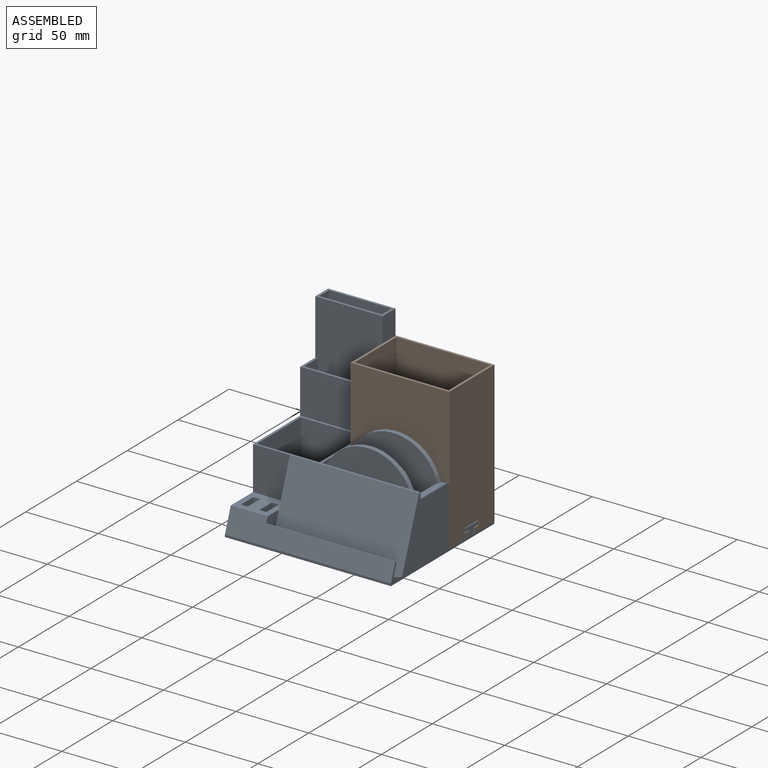
[diagram: assembled view]
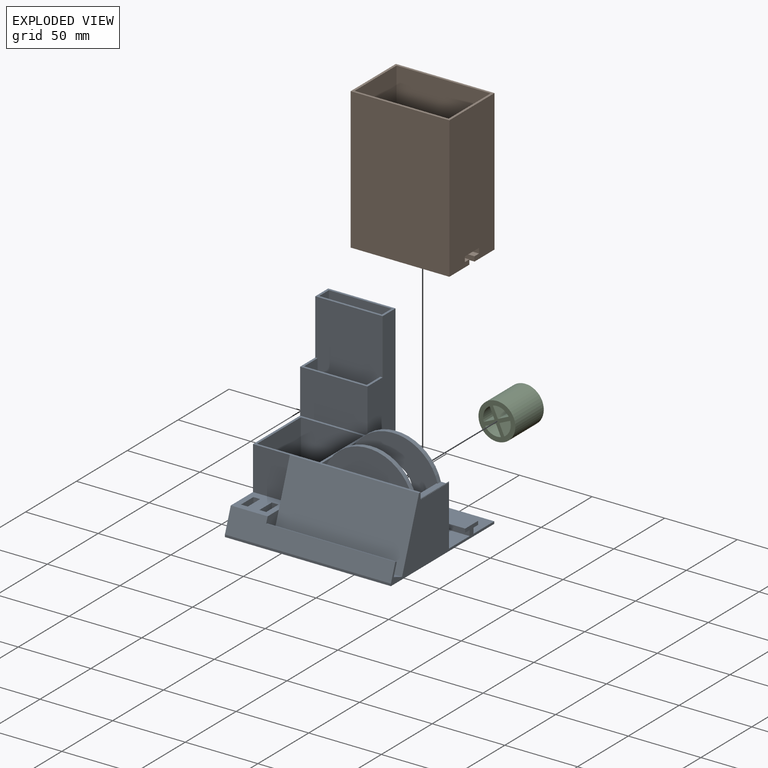
[diagram: exploded view]
GUIDED TOUR — MATED ASSEMBLY (Onshape document 43e602988aa5eb020c85fcba, AutoMate assembly 43e602988aa5eb020c85fcba_9b0caa59e8d1a8565d4183b4_3f70e2825a482d77e916e077_default)

This assembly has 3 components, labeled P0..P2 below (a component is one placed occurrence of a part; the same part can appear more than once), held together by 2 mates. A mate is a constraint between two components; its type names the relative motion it leaves free:
  CYLINDRICAL — leaves both rotation about and translation along the listed axis free,
  PLANAR — leaves sliding in the plane through the listed point (normal = the listed direction) and rotation about that normal free.
Axis/direction vectors are unit vectors and 'through' points are millimeter coordinates, both in the assembly's world frame.

MATES
  1. PLANAR "Planar 1": P0 <-> P1, direction (0.000, 0.000, 1.000) through (23.18, 16.51, 1.59) mm
  2. CYLINDRICAL "Cylindrical 1": P2 <-> P0, axis (0.000, 1.000, 0.000) through (20.95, -7.68, 33.34) mm

ASSEMBLY ORDER
  1. P0 — the base component [order heuristic]
  2. P1 — core [order heuristic]
  3. P2 [order verified]
Order-tag legend:
  [order verified] — this step's position reverses a verified removal order: the component was checked to insert without passing through the ones already placed.
  [order heuristic] — the first 2 components form the assembly's core: parts whose collision-free extraction could not be verified, listed in mate-graph order.

Of the 3 components, 2 carry the full construction recipe — the FeatureScript program that regenerates the part's solid from scratch; the rest are supplied as boundary geometry only.
Each toured component is shown spotlighted twice — in the assembled view, then in the exploded view, where a leader line traces a displaced component back to its assembled socket (saturated green if recipe-attached, orange if geometry-only; every other component desaturated gray) — followed by its recipe or geometry summary and the mates that hold it.
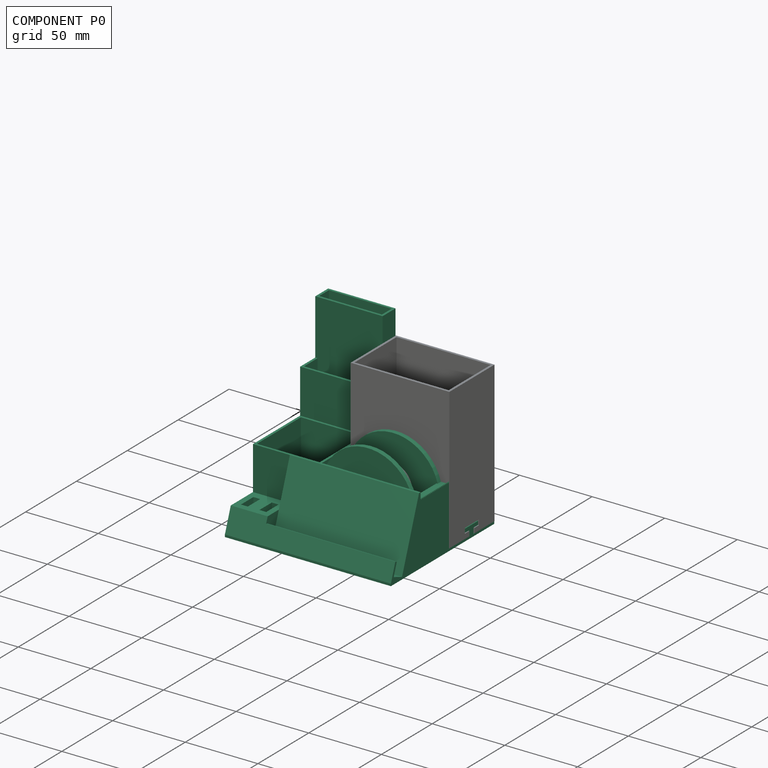
[diagram: component P0 — assembled]
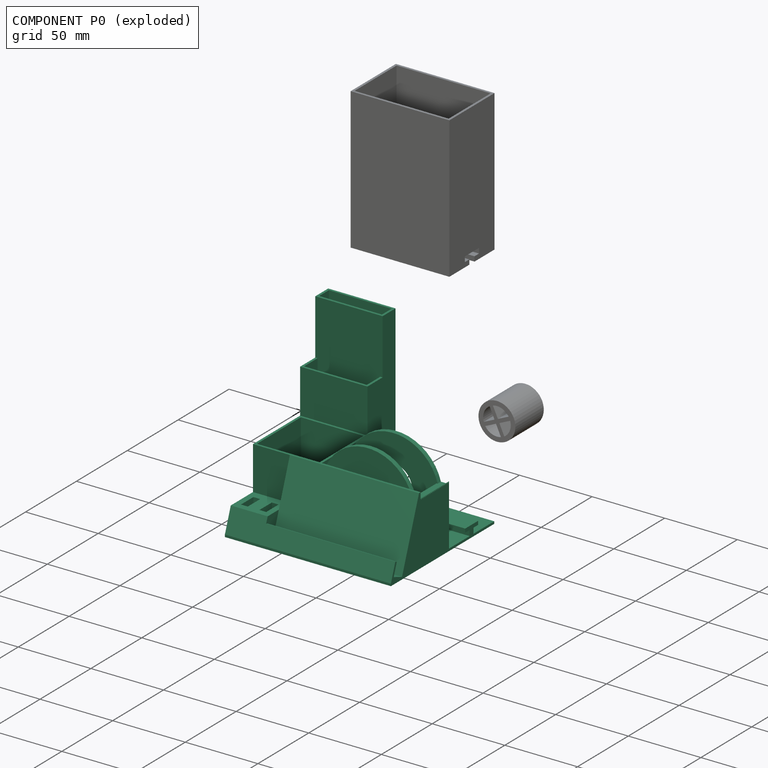
[diagram: component P0 — exploded]
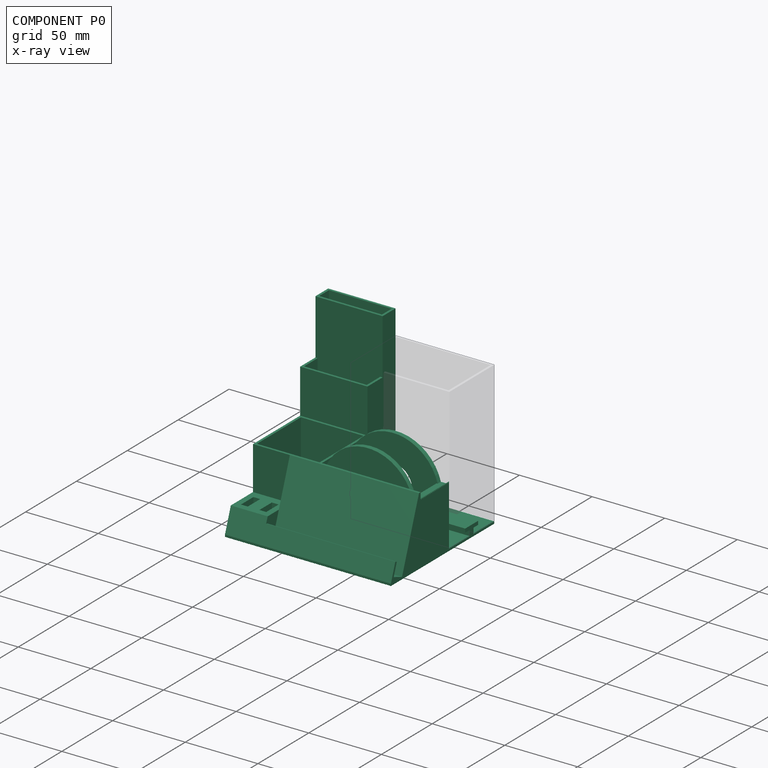
[diagram: component P0 — x-ray view]
COMPONENT P0 — recipe-attached (CADFS 00814327, mesh-verified: the recipe's output STEP matches this component's geometry to below the mesh-comparison resolution (tessellation chordal tolerance ~0.288 mm)).
Held by: PLANAR mate "Planar 1" to P1; CYLINDRICAL mate "Cylindrical 1" to P2.
Construction recipe (FeatureScript — the CAD program that rebuilds this solid; sketch coordinates are in the units given by the * unit suffixes, e.g. mm):

FeatureScript 1540;
import(path : "onshape/std/geometry.fs", version : "1540.0");
import(path : "onshape/std/common.fs", version : "1540.0");
const mm = millimeter;
const VERTEX = EntityType.VERTEX;
const EDGE = EntityType.EDGE;
const FACE = EntityType.FACE;
const BODY = EntityType.BODY;
function v(x, y){return vector(x, y);}
function OD(order){return orderDisambiguation(order);}
function OSD(set){return originalSetDisambiguation(set);}
function TD(topology){return topologyDisambiguation(topology);}
function TDD(query){return trueDependencyDisambiguation(query);}
function sQuery(a, b, c) {return sketchEntityQuery(a, b, c);}

annotation { "Feature Type Name" : "Feature", "Feature Type Description" : "" }
export const myFeature = defineFeature(function(context is Context, id is Id, definition is map)
    precondition{}
    {
        {
            var Q0;
            Q0=qCreatedBy(makeId("Top.planeOp"),FACE);
            var sketch = newSketch(context, id + "F0", { "sketchPlane" : qUnion([Q0])});
            skLineSegment(sketch, "E0.bottom", {"start": v(-57.15, 50.8) * mm, "end": v(57.15, 50.8) * mm});
            skLineSegment(sketch, "E0.top", {"start": v(-57.15, -50.8) * mm, "end": v(57.15, -50.8) * mm});
            skLineSegment(sketch, "E0.left", {"start": v(-57.15, 50.8) * mm, "end": v(-57.15, -50.8) * mm});
            skLineSegment(sketch, "E0.right", {"start": v(57.15, 50.8) * mm, "end": v(57.15, -50.8) * mm});
            skLineSegment(sketch, "E1", {"start": v(-57.15, 50.8) * mm, "end": v(57.15, -50.8) * mm, "construction": true});
            skSolve(sketch);
        }
        {
            var Q0;
            Q0 = qSketchRegion(id + "F0", true);
            extrude(context, id + "F1", {"entities" : qUnion([Q0]), "depth" : 1.59 * mm, "offsetDistance" : 25.4 * mm});
        }
        {
            var Q0;
            Q0=makeQuery(id+"F1.opExtrude","CAP_FACE",FACE,{"disambiguationData":[OSD([sQuery(id+"F0.wireOp",EDGE,"E0.bottom"),sQuery(id+"F0.wireOp",EDGE,"E0.top"),sQuery(id+"F0.wireOp",EDGE,"E0.left"),sQuery(id+"F0.wireOp",EDGE,"E0.right")])],"isStart":false});
            var sketch = newSketch(context, id + "F2", { "sketchPlane" : qUnion([Q0])});
            skLineSegment(sketch, "E2.bottom", {"start": v(-57.15, 23.18) * mm, "end": v(-10.8, 23.18) * mm});
            skLineSegment(sketch, "E2.top", {"start": v(-57.15, -23.18) * mm, "end": v(-10.8, -23.18) * mm});
            skLineSegment(sketch, "E2.left", {"start": v(-57.15, 23.18) * mm, "end": v(-57.15, -23.18) * mm});
            skLineSegment(sketch, "E2.right", {"start": v(-10.8, 23.18) * mm, "end": v(-10.8, -23.18) * mm});
            skLineSegment(sketch, "E3", {"start": v(0, 0) * mm, "end": v(-10.8, 0) * mm, "construction": true});
            skLineSegment(sketch, "E4.bottom", {"start": v(-55.56, 21.59) * mm, "end": v(-12.38, 21.59) * mm});
            skLineSegment(sketch, "E4.top", {"start": v(-55.56, -21.6) * mm, "end": v(-12.38, -21.6) * mm});
            skLineSegment(sketch, "E4.left", {"start": v(-55.56, 21.59) * mm, "end": v(-55.56, -21.6) * mm});
            skLineSegment(sketch, "E4.right", {"start": v(-12.38, 21.6) * mm, "end": v(-12.38, -21.6) * mm});
            skLineSegment(sketch, "E5", {"start": v(-57.15, 23.18) * mm, "end": v(-10.8, -23.18) * mm, "construction": true});
            skPoint(sketch, "E6", {"position": v(-33.97, 0) * mm});
            skLineSegment(sketch, "E7", {"start": v(-12.38, 21.6) * mm, "end": v(-55.56, -21.6) * mm, "construction": true});
            skSolve(sketch);
        }
        {
            var Q0;
            Q0 = qSketchRegion(id + "F2", true);
            extrude(context, id + "F3", {"entities" : qUnion([Q0]), "operationType" : NewBodyOperationType.ADD, "depth" : 45.72 * mm, "offsetDistance" : 25.4 * mm});
        }
        {
            var Q0;
            {var subQ0=sQuery(id+"F0.wireOp",EDGE,"E0.left");var subQ1=sQuery(id+"F0.wireOp",EDGE,"E0.top");var subQ2=sQuery(id+"F0.wireOp",EDGE,"E0.right");var subQ3=sQuery(id+"F0.wireOp",EDGE,"E0.bottom");Q0=makeQuery(id+"F3.boolean.opBoolean","SPLIT",FACE,{"disambiguationData":[TD([makeQuery(id+"F1.opExtrude","SWEPT_FACE",FACE,{"disambiguationData":[OSD([subQ3])]})])],"derivedFrom":makeQuery(id+"F1.opExtrude","CAP_FACE",FACE,{"disambiguationData":[OSD([subQ3,subQ1,subQ0,subQ2])],"isStart":false})});}
            var sketch = newSketch(context, id + "F4", { "sketchPlane" : qUnion([Q0])});
            skLineSegment(sketch, "E8.bottom", {"start": v(57.15, -21.6) * mm, "end": v(-31.75, -21.6) * mm});
            skLineSegment(sketch, "E8.top", {"start": v(57.15, -23.18) * mm, "end": v(-31.75, -23.18) * mm});
            skLineSegment(sketch, "E8.left", {"start": v(57.15, -21.6) * mm, "end": v(57.15, -23.18) * mm});
            skLineSegment(sketch, "E8.right", {"start": v(-31.75, -21.6) * mm, "end": v(-31.75, -23.18) * mm});
            skSolve(sketch);
        }
        {
            var Q0;
            Q0 = qSketchRegion(id + "F4", true);
            extrude(context, id + "F5", {"entities" : qUnion([Q0]), "operationType" : NewBodyOperationType.ADD, "depth" : 45.72 * mm, "offsetDistance" : 25.4 * mm});
        }
        {
            var Q0;
            Q0=makeQuery(id+"F5.boolean.opBoolean","MERGE",FACE,{"derivedFrom":[makeQuery(id+"F1.opExtrude","SWEPT_FACE",FACE,{"disambiguationData":[OSD([sQuery(id+"F0.wireOp",EDGE,"E0.right")])]}),makeQuery(id+"F5.opExtrude","SWEPT_FACE",FACE,{"disambiguationData":[OSD([sQuery(id+"F4.wireOp",EDGE,"E8.left")])]})]});
            var sketch = newSketch(context, id + "F6", { "sketchPlane" : qUnion([Q0])});
            skLineSegment(sketch, "E9", {"start": v(-50.8, 1.59) * mm, "end": v(-46.46, 13.52) * mm});
            skLineSegment(sketch, "E10", {"start": v(-46.46, 13.52) * mm, "end": v(-44.96, 12.98) * mm});
            skLineSegment(sketch, "E11", {"start": v(-44.96, 12.98) * mm, "end": v(-48.02, 4.57) * mm});
            skLineSegment(sketch, "E12", {"start": v(-48.02, 4.57) * mm, "end": v(-39.82, 1.59) * mm});
            skLineSegment(sketch, "E13", {"start": v(-39.82, 1.59) * mm, "end": v(-23.18, 47.3) * mm});
            skLineSegment(sketch, "E14", {"start": v(-23.18, 47.3) * mm, "end": v(-23.18, 42.67) * mm});
            skLineSegment(sketch, "E15", {"start": v(-23.18, 42.67) * mm, "end": v(-38.13, 1.59) * mm});
            skLineSegment(sketch, "E16", {"start": v(-50.8, 1.59) * mm, "end": v(-39.82, 1.59) * mm});
            skLineSegment(sketch, "E17", {"start": v(-39.82, 1.59) * mm, "end": v(-38.13, 1.59) * mm});
            skSolve(sketch);
        }
        {
            var Q0;
            Q0 = qSketchRegion(id + "F6", true);
            extrude(context, id + "F7", {"entities" : qUnion([Q0]), "operationType" : NewBodyOperationType.ADD, "oppositeDirection" : true, "depth" : 88.9 * mm, "offsetDistance" : 25.4 * mm});
        }
        {
            var Q0;
            Q0=makeQuery(id+"F7.boolean.opBoolean","MERGE",FACE,{"derivedFrom":[makeQuery(id+"F5.boolean.opBoolean","MERGE",FACE,{"derivedFrom":[makeQuery(id+"F1.opExtrude","SWEPT_FACE",FACE,{"disambiguationData":[OSD([sQuery(id+"F0.wireOp",EDGE,"E0.right")])]}),makeQuery(id+"F5.opExtrude","SWEPT_FACE",FACE,{"disambiguationData":[OSD([sQuery(id+"F4.wireOp",EDGE,"E8.left")])]})]}),makeQuery(id+"F7.opExtrude","CAP_FACE",FACE,{"disambiguationData":[OSD([sQuery(id+"F6.wireOp",EDGE,"E9"),sQuery(id+"F6.wireOp",EDGE,"E10"),sQuery(id+"F6.wireOp",EDGE,"E11"),sQuery(id+"F6.wireOp",EDGE,"E12"),sQuery(id+"F6.wireOp",EDGE,"E16")])],"isStart":true}),makeQuery(id+"F7.opExtrude","CAP_FACE",FACE,{"disambiguationData":[OSD([sQuery(id+"F6.wireOp",EDGE,"E13"),sQuery(id+"F6.wireOp",EDGE,"E14"),sQuery(id+"F6.wireOp",EDGE,"E15"),sQuery(id+"F6.wireOp",EDGE,"E17")])],"isStart":true})]});
            var sketch = newSketch(context, id + "F8", { "sketchPlane" : qUnion([Q0])});
            skLineSegment(sketch, "E18", {"start": v(-23.18, 42.67) * mm, "end": v(-38.13, 1.59) * mm});
            skLineSegment(sketch, "E19", {"start": v(-38.13, 1.59) * mm, "end": v(-23.18, 1.59) * mm});
            skLineSegment(sketch, "E20", {"start": v(-23.18, 1.59) * mm, "end": v(-23.18, 42.67) * mm});
            skSolve(sketch);
        }
        {
            var Q0;
            Q0 = qSketchRegion(id + "F8", true);
            extrude(context, id + "F9", {"entities" : qUnion([Q0]), "operationType" : NewBodyOperationType.ADD, "oppositeDirection" : true, "depth" : 1.59 * mm, "offsetDistance" : 25.4 * mm});
        }
        {
            var Q0;
            Q0=makeQuery(id+"F7.opExtrude","CAP_FACE",FACE,{"disambiguationData":[OSD([sQuery(id+"F6.wireOp",EDGE,"E13"),sQuery(id+"F6.wireOp",EDGE,"E14"),sQuery(id+"F6.wireOp",EDGE,"E15"),sQuery(id+"F6.wireOp",EDGE,"E17")])],"isStart":false});
            var sketch = newSketch(context, id + "F10", { "sketchPlane" : qUnion([Q0])});
            skLineSegment(sketch, "E21", {"start": v(38.13, 1.59) * mm, "end": v(23.18, 42.67) * mm});
            skLineSegment(sketch, "E22", {"start": v(23.18, 42.67) * mm, "end": v(23.18, 1.59) * mm});
            skLineSegment(sketch, "E23", {"start": v(23.18, 1.59) * mm, "end": v(38.13, 1.59) * mm});
            skSolve(sketch);
        }
        {
            var Q0;
            Q0 = qSketchRegion(id + "F10", true);
            extrude(context, id + "F11", {"entities" : qUnion([Q0]), "operationType" : NewBodyOperationType.ADD, "oppositeDirection" : true, "depth" : 1.59 * mm, "offsetDistance" : 25.4 * mm});
        }
        {
            var Q0;
            {var subQ5=sQuery(id+"F0.wireOp",EDGE,"E0.top");var subQ6=makeQuery(id+"F1.opExtrude","SWEPT_FACE",FACE,{"disambiguationData":[OSD([subQ5])]});var subQ7=sQuery(id+"F0.wireOp",EDGE,"E0.left");var subQ10=sQuery(id+"F0.wireOp",EDGE,"E0.right");var subQ12=sQuery(id+"F0.wireOp",EDGE,"E0.bottom");Q0=makeQuery(id+"F11.boolean.opBoolean","SPLIT",FACE,{"disambiguationData":[TD([subQ6])],"derivedFrom":makeQuery(id+"F5.boolean.opBoolean","SPLIT",FACE,{"disambiguationData":[TD([subQ6])],"derivedFrom":makeQuery(id+"F3.boolean.opBoolean","SPLIT",FACE,{"disambiguationData":[TD([makeQuery(id+"F1.opExtrude","SWEPT_FACE",FACE,{"disambiguationData":[OSD([subQ12])]})])],"derivedFrom":makeQuery(id+"F1.opExtrude","CAP_FACE",FACE,{"disambiguationData":[OSD([subQ12,subQ5,subQ7,subQ10])],"isStart":false})})})});}
            var sketch = newSketch(context, id + "F12", { "sketchPlane" : qUnion([Q0])});
            skLineSegment(sketch, "E24.bottom", {"start": v(-57.15, -23.18) * mm, "end": v(-31.75, -23.18) * mm});
            skLineSegment(sketch, "E24.top", {"start": v(-57.15, -50.8) * mm, "end": v(-31.75, -50.8) * mm});
            skLineSegment(sketch, "E24.left", {"start": v(-57.15, -23.18) * mm, "end": v(-57.15, -50.8) * mm});
            skLineSegment(sketch, "E24.right", {"start": v(-31.75, -23.18) * mm, "end": v(-31.75, -50.8) * mm});
            skLineSegment(sketch, "E25.bottom", {"start": v(-53.15, -28.51) * mm, "end": v(-48.45, -28.51) * mm});
            skLineSegment(sketch, "E25.top", {"start": v(-53.15, -40.7) * mm, "end": v(-48.45, -40.7) * mm});
            skLineSegment(sketch, "E25.left", {"start": v(-53.15, -28.51) * mm, "end": v(-53.15, -40.7) * mm});
            skLineSegment(sketch, "E25.right", {"start": v(-48.45, -28.51) * mm, "end": v(-48.45, -40.7) * mm});
            skLineSegment(sketch, "E26.bottom", {"start": v(-40.45, -28.51) * mm, "end": v(-35.75, -28.51) * mm});
            skLineSegment(sketch, "E26.top", {"start": v(-40.45, -40.7) * mm, "end": v(-35.75, -40.7) * mm});
            skLineSegment(sketch, "E26.left", {"start": v(-40.45, -28.51) * mm, "end": v(-40.45, -40.7) * mm});
            skLineSegment(sketch, "E26.right", {"start": v(-35.75, -28.51) * mm, "end": v(-35.75, -40.7) * mm});
            skLineSegment(sketch, "E27", {"start": v(-44.45, -34.6) * mm, "end": v(-40.45, -34.6) * mm, "construction": true});
            skLineSegment(sketch, "E28", {"start": v(-48.45, -34.6) * mm, "end": v(-44.45, -34.6) * mm, "construction": true});
            skLineSegment(sketch, "E29", {"start": v(-44.45, -34.6) * mm, "end": v(-44.45, -23.18) * mm, "construction": true});
            skLineSegment(sketch, "E30", {"start": v(-53.15, -34.6) * mm, "end": v(-57.15, -34.6) * mm, "construction": true});
            skLineSegment(sketch, "E31.bottom", {"start": v(-55.56, -24.77) * mm, "end": v(-33.34, -24.77) * mm});
            skLineSegment(sketch, "E31.top", {"start": v(-55.56, -49.21) * mm, "end": v(-33.34, -49.21) * mm});
            skLineSegment(sketch, "E31.left", {"start": v(-55.56, -24.77) * mm, "end": v(-55.56, -49.21) * mm});
            skLineSegment(sketch, "E31.right", {"start": v(-33.34, -24.77) * mm, "end": v(-33.34, -49.21) * mm});
            skLineSegment(sketch, "E32.bottom", {"start": v(-42.04, -26.92) * mm, "end": v(-34.16, -26.92) * mm});
            skLineSegment(sketch, "E32.top", {"start": v(-42.04, -42.3) * mm, "end": v(-34.16, -42.3) * mm});
            skLineSegment(sketch, "E32.left", {"start": v(-42.04, -26.92) * mm, "end": v(-42.04, -42.3) * mm});
            skLineSegment(sketch, "E32.right", {"start": v(-34.16, -26.92) * mm, "end": v(-34.16, -42.3) * mm});
            skLineSegment(sketch, "E33.bottom", {"start": v(-54.74, -26.92) * mm, "end": v(-46.86, -26.92) * mm});
            skLineSegment(sketch, "E33.top", {"start": v(-54.74, -42.3) * mm, "end": v(-46.86, -42.3) * mm});
            skLineSegment(sketch, "E33.left", {"start": v(-54.74, -26.92) * mm, "end": v(-54.74, -42.3) * mm});
            skLineSegment(sketch, "E33.right", {"start": v(-46.86, -26.92) * mm, "end": v(-46.86, -42.3) * mm});
            skSolve(sketch);
        }
        {
            var Q0;
            Q0 = qSketchRegion(id + "F12", true);
            var Q1;
            Q1=makeQuery(id+"F12.imprint","IMPRINT",FACE,{"disambiguationData":[TD([[makeQuery(id+"F12.imprint","IMPRINT",EDGE,{"derivedFrom":sQuery(id+"F12.wireOp",EDGE,"E26.bottom")}),1.0]])]});
            var Q2;
            Q2=makeQuery(id+"F12.imprint","IMPRINT",FACE,{"disambiguationData":[TD([[makeQuery(id+"F12.imprint","IMPRINT",EDGE,{"derivedFrom":sQuery(id+"F12.wireOp",EDGE,"E25.bottom")}),1.0]])]});
            extrude(context, id + "F13", {"entities" : qUnion([Q0, Q1, Q2]), "operationType" : NewBodyOperationType.ADD, "depth" : 15.88 * mm, "offsetDistance" : 25.4 * mm});
        }
        {
            var Q0;
            Q0=makeQuery(id+"F13.opExtrude","CAP_FACE",FACE,{"disambiguationData":[OSD([sQuery(id+"F12.wireOp",EDGE,"E24.bottom"),sQuery(id+"F12.wireOp",EDGE,"E24.top"),sQuery(id+"F12.wireOp",EDGE,"E24.left"),sQuery(id+"F12.wireOp",EDGE,"E24.right"),sQuery(id+"F12.wireOp",EDGE,"E31.bottom"),sQuery(id+"F12.wireOp",EDGE,"E31.top"),sQuery(id+"F12.wireOp",EDGE,"E31.left"),sQuery(id+"F12.wireOp",EDGE,"E31.right")])],"isStart":false});
            var sketch = newSketch(context, id + "F14", { "sketchPlane" : qUnion([Q0])});
            skLineSegment(sketch, "E34.bottom", {"start": v(-57.15, -23.18) * mm, "end": v(-31.75, -23.18) * mm});
            skLineSegment(sketch, "E34.top", {"start": v(-57.15, -50.8) * mm, "end": v(-31.75, -50.8) * mm});
            skLineSegment(sketch, "E34.left", {"start": v(-57.15, -23.18) * mm, "end": v(-57.15, -50.8) * mm});
            skLineSegment(sketch, "E34.right", {"start": v(-31.75, -23.18) * mm, "end": v(-31.75, -50.8) * mm});
            skLineSegment(sketch, "E35.bottom", {"start": v(-53.15, -28.51) * mm, "end": v(-48.45, -28.51) * mm});
            skLineSegment(sketch, "E35.top", {"start": v(-53.15, -40.7) * mm, "end": v(-48.45, -40.7) * mm});
            skLineSegment(sketch, "E35.left", {"start": v(-53.15, -28.51) * mm, "end": v(-53.15, -40.7) * mm});
            skLineSegment(sketch, "E35.right", {"start": v(-48.45, -28.51) * mm, "end": v(-48.45, -40.7) * mm});
            skLineSegment(sketch, "E36.bottom", {"start": v(-40.45, -28.51) * mm, "end": v(-35.75, -28.51) * mm});
            skLineSegment(sketch, "E36.top", {"start": v(-40.45, -40.7) * mm, "end": v(-35.75, -40.7) * mm});
            skLineSegment(sketch, "E36.left", {"start": v(-40.45, -28.51) * mm, "end": v(-40.45, -40.7) * mm});
            skLineSegment(sketch, "E36.right", {"start": v(-35.75, -28.51) * mm, "end": v(-35.75, -40.7) * mm});
            skSolve(sketch);
        }
        {
            var Q0;
            Q0 = qSketchRegion(id + "F14", true);
            extrude(context, id + "F15", {"entities" : qUnion([Q0]), "operationType" : NewBodyOperationType.ADD, "oppositeDirection" : true, "depth" : 1.59 * mm, "offsetDistance" : 25.4 * mm});
        }
        {
            var Q0;
            Q0=makeQuery(id+"F13.opExtrude","SWEPT_FACE",FACE,{"disambiguationData":[OSD([sQuery(id+"F12.wireOp",EDGE,"E24.right")])]});
            var sketch = newSketch(context, id + "F16", { "sketchPlane" : qUnion([Q0])});
            skLineSegment(sketch, "E37", {"start": v(-50.8, 1.59) * mm, "end": v(-45.02, 17.46) * mm});
            skLineSegment(sketch, "E38", {"start": v(-45.02, 17.46) * mm, "end": v(-50.8, 17.46) * mm});
            skLineSegment(sketch, "E39", {"start": v(-50.8, 17.46) * mm, "end": v(-50.8, 1.59) * mm});
            skSolve(sketch);
        }
        {
            var Q0;
            Q0 = qSketchRegion(id + "F16", true);
            extrude(context, id + "F17", {"entities" : qUnion([Q0]), "operationType" : NewBodyOperationType.REMOVE, "oppositeDirection" : true, "depth" : 25.4 * mm, "offsetDistance" : 25.4 * mm});
        }
        {
            var Q0;
            {var subQ1=sQuery(id+"F0.wireOp",EDGE,"E0.left");var subQ3=sQuery(id+"F0.wireOp",EDGE,"E0.right");var subQ6=sQuery(id+"F0.wireOp",EDGE,"E0.bottom");var subQ7=makeQuery(id+"F1.opExtrude","SWEPT_FACE",FACE,{"disambiguationData":[OSD([subQ6])]});var subQ9=sQuery(id+"F0.wireOp",EDGE,"E0.top");Q0=makeQuery(id+"F5.boolean.opBoolean","SPLIT",FACE,{"disambiguationData":[TD([subQ7])],"derivedFrom":makeQuery(id+"F3.boolean.opBoolean","SPLIT",FACE,{"disambiguationData":[TD([subQ7])],"derivedFrom":makeQuery(id+"F1.opExtrude","CAP_FACE",FACE,{"disambiguationData":[OSD([subQ6,subQ9,subQ1,subQ3])],"isStart":false})})});}
            var sketch = newSketch(context, id + "F18", { "sketchPlane" : qUnion([Q0])});
            skLineSegment(sketch, "E40.bottom", {"start": v(-10.8, -21.6) * mm, "end": v(57.15, -21.6) * mm});
            skLineSegment(sketch, "E40.top", {"start": v(-10.8, -18.42) * mm, "end": v(57.15, -18.42) * mm});
            skLineSegment(sketch, "E40.left", {"start": v(-10.8, -21.6) * mm, "end": v(-10.8, -18.42) * mm});
            skLineSegment(sketch, "E40.right", {"start": v(57.15, -21.6) * mm, "end": v(57.15, -18.42) * mm});
            skLineSegment(sketch, "E41.bottom", {"start": v(-10.8, 6.35) * mm, "end": v(57.15, 6.35) * mm});
            skLineSegment(sketch, "E41.top", {"start": v(-10.8, 3.17) * mm, "end": v(57.15, 3.17) * mm});
            skLineSegment(sketch, "E41.left", {"start": v(-10.8, 6.35) * mm, "end": v(-10.8, 3.17) * mm});
            skLineSegment(sketch, "E41.right", {"start": v(57.15, 6.35) * mm, "end": v(57.15, 3.17) * mm});
            skLineSegment(sketch, "E42.bottom", {"start": v(50.8, 3.17) * mm, "end": v(57.15, 3.17) * mm});
            skLineSegment(sketch, "E42.top", {"start": v(50.8, -18.42) * mm, "end": v(57.15, -18.42) * mm});
            skLineSegment(sketch, "E42.left", {"start": v(50.8, 3.17) * mm, "end": v(50.8, -18.42) * mm});
            skLineSegment(sketch, "E42.right", {"start": v(57.15, 3.17) * mm, "end": v(57.15, -18.42) * mm});
            skSolve(sketch);
        }
        {
            var Q0;
            Q0 = qSketchRegion(id + "F18", true);
            extrude(context, id + "F19", {"entities" : qUnion([Q0]), "operationType" : NewBodyOperationType.ADD, "depth" : 38.1 * mm, "offsetDistance" : 25.4 * mm});
        }
        {
            var Q0;
            Q0=makeQuery(id+"F5.opExtrude","SWEPT_FACE",FACE,{"disambiguationData":[OSD([sQuery(id+"F4.wireOp",EDGE,"E8.bottom")])]});
            var sketch = newSketch(context, id + "F20", { "sketchPlane" : qUnion([Q0])});
            skLineSegment(sketch, "E43", {"start": v(-57.15, 43.5) * mm, "end": v(-55.35, 41.7) * mm});
            skLineSegment(sketch, "E44", {"start": v(-55.35, 41.7) * mm, "end": v(-50.8, 41.7) * mm});
            skLineSegment(sketch, "E45", {"start": v(-50.8, 41.7) * mm, "end": v(-50.8, 39.69) * mm});
            skLineSegment(sketch, "E46", {"start": v(-50.8, 39.69) * mm, "end": v(-57.15, 39.69) * mm});
            skLineSegment(sketch, "E47", {"start": v(-57.15, 39.69) * mm, "end": v(-57.15, 43.5) * mm});
            skSolve(sketch);
        }
        {
            var Q0;
            Q0 = qSketchRegion(id + "F20", true);
            var Q1;
            Q1=makeQuery(id+"F19.opExtrude","SWEPT_FACE",FACE,{"disambiguationData":[OSD([sQuery(id+"F18.wireOp",EDGE,"E41.bottom")])]});
            extrude(context, id + "F21", {"entities" : qUnion([Q0]), "operationType" : NewBodyOperationType.ADD, "endBound" : BoundingType.UP_TO_SURFACE, "depth" : 25.4 * mm, "endBoundEntityFace" : qUnion([Q1]), "offsetDistance" : 25.4 * mm});
        }
        {
            var Q0;
            Q0=makeQuery(id+"F21.boolean.opBoolean","MERGE",FACE,{"derivedFrom":[makeQuery(id+"F19.boolean.opBoolean","MERGE",FACE,{"derivedFrom":[makeQuery(id+"F9.boolean.opBoolean","MERGE",FACE,{"derivedFrom":[makeQuery(id+"F7.boolean.opBoolean","MERGE",FACE,{"derivedFrom":[makeQuery(id+"F5.boolean.opBoolean","MERGE",FACE,{"derivedFrom":[makeQuery(id+"F1.opExtrude","SWEPT_FACE",FACE,{"disambiguationData":[OSD([sQuery(id+"F0.wireOp",EDGE,"E0.right")])]}),makeQuery(id+"F5.opExtrude","SWEPT_FACE",FACE,{"disambiguationData":[OSD([sQuery(id+"F4.wireOp",EDGE,"E8.left")])]})]}),makeQuery(id+"F7.opExtrude","CAP_FACE",FACE,{"disambiguationData":[OSD([sQuery(id+"F6.wireOp",EDGE,"E9"),sQuery(id+"F6.wireOp",EDGE,"E10"),sQuery(id+"F6.wireOp",EDGE,"E11"),sQuery(id+"F6.wireOp",EDGE,"E12"),sQuery(id+"F6.wireOp",EDGE,"E16")])],"isStart":true}),makeQuery(id+"F7.opExtrude","CAP_FACE",FACE,{"disambiguationData":[OSD([sQuery(id+"F6.wireOp",EDGE,"E13"),sQuery(id+"F6.wireOp",EDGE,"E14"),sQuery(id+"F6.wireOp",EDGE,"E15"),sQuery(id+"F6.wireOp",EDGE,"E17")])],"isStart":true})]}),makeQuery(id+"F9.opExtrude","CAP_FACE",FACE,{"disambiguationData":[OSD([sQuery(id+"F8.wireOp",EDGE,"E18"),sQuery(id+"F8.wireOp",EDGE,"E19"),sQuery(id+"F8.wireOp",EDGE,"E20")])],"isStart":true})]}),makeQuery(id+"F19.opExtrude","SWEPT_FACE",FACE,{"disambiguationData":[OSD([sQuery(id+"F18.wireOp",EDGE,"E40.right"),sQuery(id+"F18.wireOp",EDGE,"E41.right"),sQuery(id+"F18.wireOp",EDGE,"E42.right")])]})]}),makeQuery(id+"F21.opExtrude","SWEPT_FACE",FACE,{"disambiguationData":[OSD([sQuery(id+"F20.wireOp",EDGE,"E47")])]})]});
            var sketch = newSketch(context, id + "F22", { "sketchPlane" : qUnion([Q0])});
            skLineSegment(sketch, "E48", {"start": v(-21.6, 43.5) * mm, "end": v(-20.96, 42.4) * mm});
            skLineSegment(sketch, "E49", {"start": v(-20.96, 42.4) * mm, "end": v(-20.32, 43.5) * mm});
            skLineSegment(sketch, "E50", {"start": v(-20.32, 43.5) * mm, "end": v(-21.59, 43.5) * mm});
            skLineSegment(sketch, "E51.1.0.0", {"start": v(-19.05, 43.5) * mm, "end": v(-20.32, 43.5) * mm});
            skLineSegment(sketch, "E51.1.0.1", {"start": v(-19.69, 42.4) * mm, "end": v(-19.05, 43.5) * mm});
            skLineSegment(sketch, "E51.1.0.2", {"start": v(-20.32, 43.5) * mm, "end": v(-19.69, 42.4) * mm});
            skLineSegment(sketch, "E51.2.0.0", {"start": v(-17.78, 43.5) * mm, "end": v(-19.05, 43.5) * mm});
            skLineSegment(sketch, "E51.2.0.1", {"start": v(-18.42, 42.4) * mm, "end": v(-17.78, 43.5) * mm});
            skLineSegment(sketch, "E51.2.0.2", {"start": v(-19.05, 43.5) * mm, "end": v(-18.41, 42.4) * mm});
            skLineSegment(sketch, "E51.3.0.0", {"start": v(-16.51, 43.5) * mm, "end": v(-17.78, 43.5) * mm});
            skLineSegment(sketch, "E51.3.0.1", {"start": v(-17.15, 42.4) * mm, "end": v(-16.51, 43.5) * mm});
            skLineSegment(sketch, "E51.3.0.2", {"start": v(-17.78, 43.5) * mm, "end": v(-17.14, 42.4) * mm});
            skLineSegment(sketch, "E51.4.0.0", {"start": v(-15.24, 43.5) * mm, "end": v(-16.51, 43.5) * mm});
            skLineSegment(sketch, "E51.4.0.1", {"start": v(-15.88, 42.4) * mm, "end": v(-15.24, 43.5) * mm});
            skLineSegment(sketch, "E51.4.0.2", {"start": v(-16.51, 43.5) * mm, "end": v(-15.88, 42.4) * mm});
            skLineSegment(sketch, "E51.5.0.0", {"start": v(-13.97, 43.5) * mm, "end": v(-15.24, 43.5) * mm});
            skLineSegment(sketch, "E51.5.0.1", {"start": v(-14.6, 42.4) * mm, "end": v(-13.97, 43.5) * mm});
            skLineSegment(sketch, "E51.5.0.2", {"start": v(-15.24, 43.5) * mm, "end": v(-14.6, 42.4) * mm});
            skLineSegment(sketch, "E51.6.0.0", {"start": v(-12.7, 43.5) * mm, "end": v(-13.97, 43.5) * mm});
            skLineSegment(sketch, "E51.6.0.1", {"start": v(-13.34, 42.4) * mm, "end": v(-12.7, 43.5) * mm});
            skLineSegment(sketch, "E51.6.0.2", {"start": v(-13.97, 43.5) * mm, "end": v(-13.34, 42.4) * mm});
            skLineSegment(sketch, "E51.7.0.0", {"start": v(-11.43, 43.5) * mm, "end": v(-12.7, 43.5) * mm});
            skLineSegment(sketch, "E51.7.0.1", {"start": v(-12.07, 42.4) * mm, "end": v(-11.43, 43.5) * mm});
            skLineSegment(sketch, "E51.7.0.2", {"start": v(-12.7, 43.5) * mm, "end": v(-12.07, 42.4) * mm});
            skLineSegment(sketch, "E51.8.0.0", {"start": v(-10.16, 43.5) * mm, "end": v(-11.43, 43.5) * mm});
            skLineSegment(sketch, "E51.8.0.1", {"start": v(-10.8, 42.4) * mm, "end": v(-10.16, 43.5) * mm});
            skLineSegment(sketch, "E51.8.0.2", {"start": v(-11.43, 43.5) * mm, "end": v(-10.8, 42.4) * mm});
            skLineSegment(sketch, "E51.9.0.0", {"start": v(-8.89, 43.5) * mm, "end": v(-10.16, 43.5) * mm});
            skLineSegment(sketch, "E51.9.0.1", {"start": v(-9.53, 42.4) * mm, "end": v(-8.9, 43.5) * mm});
            skLineSegment(sketch, "E51.9.0.2", {"start": v(-10.16, 43.5) * mm, "end": v(-9.53, 42.4) * mm});
            skLineSegment(sketch, "E51.10.0.0", {"start": v(-7.62, 43.5) * mm, "end": v(-8.89, 43.5) * mm});
            skLineSegment(sketch, "E51.10.0.1", {"start": v(-8.26, 42.4) * mm, "end": v(-7.62, 43.5) * mm});
            skLineSegment(sketch, "E51.10.0.2", {"start": v(-8.9, 43.5) * mm, "end": v(-8.26, 42.4) * mm});
            skLineSegment(sketch, "E51.11.0.0", {"start": v(-6.35, 43.5) * mm, "end": v(-7.62, 43.5) * mm});
            skLineSegment(sketch, "E51.11.0.1", {"start": v(-6.99, 42.4) * mm, "end": v(-6.35, 43.5) * mm});
            skLineSegment(sketch, "E51.11.0.2", {"start": v(-7.62, 43.5) * mm, "end": v(-6.99, 42.4) * mm});
            skLineSegment(sketch, "E51.12.0.0", {"start": v(-5.08, 43.5) * mm, "end": v(-6.35, 43.5) * mm});
            skLineSegment(sketch, "E51.12.0.1", {"start": v(-5.72, 42.4) * mm, "end": v(-5.08, 43.5) * mm});
            skLineSegment(sketch, "E51.12.0.2", {"start": v(-6.35, 43.5) * mm, "end": v(-5.71, 42.4) * mm});
            skLineSegment(sketch, "E51.13.0.0", {"start": v(-3.8, 43.5) * mm, "end": v(-5.08, 43.5) * mm});
            skLineSegment(sketch, "E51.13.0.1", {"start": v(-4.45, 42.4) * mm, "end": v(-3.81, 43.5) * mm});
            skLineSegment(sketch, "E51.13.0.2", {"start": v(-5.08, 43.5) * mm, "end": v(-4.44, 42.4) * mm});
            skLineSegment(sketch, "E51.14.0.0", {"start": v(-2.54, 43.5) * mm, "end": v(-3.8, 43.5) * mm});
            skLineSegment(sketch, "E51.14.0.1", {"start": v(-3.18, 42.4) * mm, "end": v(-2.54, 43.5) * mm});
            skLineSegment(sketch, "E51.14.0.2", {"start": v(-3.8, 43.5) * mm, "end": v(-3.17, 42.4) * mm});
            skLineSegment(sketch, "E51.15.0.0", {"start": v(-1.27, 43.5) * mm, "end": v(-2.54, 43.5) * mm});
            skLineSegment(sketch, "E51.15.0.1", {"start": v(-1.9, 42.4) * mm, "end": v(-1.27, 43.5) * mm});
            skLineSegment(sketch, "E51.15.0.2", {"start": v(-2.54, 43.5) * mm, "end": v(-1.9, 42.4) * mm});
            skLineSegment(sketch, "E51.16.0.0", {"start": v(0, 43.5) * mm, "end": v(-1.27, 43.5) * mm});
            skLineSegment(sketch, "E51.16.0.1", {"start": v(-0.64, 42.4) * mm, "end": v(0, 43.5) * mm});
            skLineSegment(sketch, "E51.16.0.2", {"start": v(-1.27, 43.5) * mm, "end": v(-0.63, 42.4) * mm});
            skLineSegment(sketch, "E51.17.0.0", {"start": v(1.27, 43.5) * mm, "end": v(0, 43.5) * mm});
            skLineSegment(sketch, "E51.17.0.1", {"start": v(0.63, 42.4) * mm, "end": v(1.27, 43.5) * mm});
            skLineSegment(sketch, "E51.17.0.2", {"start": v(0, 43.5) * mm, "end": v(0.64, 42.4) * mm});
            skLineSegment(sketch, "E51.18.0.0", {"start": v(2.54, 43.5) * mm, "end": v(1.27, 43.5) * mm});
            skLineSegment(sketch, "E51.18.0.1", {"start": v(1.9, 42.4) * mm, "end": v(2.54, 43.5) * mm});
            skLineSegment(sketch, "E51.18.0.2", {"start": v(1.27, 43.5) * mm, "end": v(1.9, 42.4) * mm});
            skLineSegment(sketch, "E51.19.0.0", {"start": v(3.81, 43.5) * mm, "end": v(2.54, 43.5) * mm});
            skLineSegment(sketch, "E51.19.0.1", {"start": v(3.18, 42.4) * mm, "end": v(3.81, 43.5) * mm});
            skLineSegment(sketch, "E51.19.0.2", {"start": v(2.54, 43.5) * mm, "end": v(3.18, 42.4) * mm});
            skLineSegment(sketch, "E51.20.0.0", {"start": v(5.08, 43.5) * mm, "end": v(3.81, 43.5) * mm});
            skLineSegment(sketch, "E51.20.0.1", {"start": v(4.45, 42.4) * mm, "end": v(5.08, 43.5) * mm});
            skLineSegment(sketch, "E51.20.0.2", {"start": v(3.81, 43.5) * mm, "end": v(4.45, 42.4) * mm});
            skLineSegment(sketch, "E51.21.0.0", {"start": v(6.35, 43.5) * mm, "end": v(5.08, 43.5) * mm});
            skLineSegment(sketch, "E51.21.0.1", {"start": v(5.72, 42.4) * mm, "end": v(6.35, 43.5) * mm});
            skLineSegment(sketch, "E51.21.0.2", {"start": v(5.08, 43.5) * mm, "end": v(5.72, 42.4) * mm});
            skLineSegment(sketch, "E51.direction1", {"start": v(-20.96, 42.4) * mm, "end": v(-19.69, 42.4) * mm, "construction": true});
            skSolve(sketch);
        }
        {
            var Q0;
            Q0 = qSketchRegion(id + "F22", true);
            extrude(context, id + "F23", {"entities" : qUnion([Q0]), "operationType" : NewBodyOperationType.REMOVE, "oppositeDirection" : true, "depth" : 25.4 * mm, "offsetDistance" : 25.4 * mm});
        }
        {
            var Q0;
            {var subQ0=sQuery(id+"F18.wireOp",EDGE,"E41.bottom");Q0=makeQuery(id+"F21.boolean.opBoolean","MERGE",FACE,{"derivedFrom":[makeQuery(id+"F19.opExtrude","SWEPT_FACE",FACE,{"disambiguationData":[OSD([subQ0])]}),makeQuery(id+"F21.opExtrude","CAP_FACE",FACE,{"disambiguationData":[OSD([subQ0])],"isStart":false})]});}
            var sketch = newSketch(context, id + "F24", { "sketchPlane" : qUnion([Q0])});
            skArc(sketch, "E52", {"start": v(10.15, 39.69) * mm, "mid": v(-20.95, 65.09) * mm, "end": v(-52.06, 39.69) * mm});
            skLineSegment(sketch, "E53", {"start": v(10.15, 39.69) * mm, "end": v(-52.06, 39.69) * mm});
            skSolve(sketch);
        }
        {
            var Q0;
            Q0 = qSketchRegion(id + "F24", true);
            extrude(context, id + "F25", {"entities" : qUnion([Q0]), "operationType" : NewBodyOperationType.ADD, "oppositeDirection" : true, "depth" : 3.17 * mm, "offsetDistance" : 25.4 * mm});
        }
        {
            var Q0;
            Q0=makeQuery(id+"F5.opExtrude","SWEPT_FACE",FACE,{"disambiguationData":[OSD([sQuery(id+"F4.wireOp",EDGE,"E8.bottom")])]});
            var sketch = newSketch(context, id + "F26", { "sketchPlane" : qUnion([Q0])});
            skCircle(sketch, "E54", {"center": v(-20.95, 33.34) * mm, "radius": 31.75 * mm});
            skSolve(sketch);
        }
        {
            var Q0;
            Q0 = qSketchRegion(id + "F26", true);
            extrude(context, id + "F27", {"entities" : qUnion([Q0]), "operationType" : NewBodyOperationType.ADD, "depth" : 3.17 * mm, "offsetDistance" : 25.4 * mm});
        }
        {
            var Q0;
            {var subQ0=sQuery(id+"F18.wireOp",EDGE,"E41.bottom");Q0=makeQuery(id+"F25.boolean.opBoolean","MERGE",FACE,{"derivedFrom":[makeQuery(id+"F21.boolean.opBoolean","MERGE",FACE,{"derivedFrom":[makeQuery(id+"F19.opExtrude","SWEPT_FACE",FACE,{"disambiguationData":[OSD([subQ0])]}),makeQuery(id+"F21.opExtrude","CAP_FACE",FACE,{"disambiguationData":[OSD([subQ0])],"isStart":false})]}),makeQuery(id+"F25.opExtrude","CAP_FACE",FACE,{"disambiguationData":[OSD([sQuery(id+"F24.wireOp",EDGE,"E52"),sQuery(id+"F24.wireOp",EDGE,"E53")])],"isStart":true})]});}
            var sketch = newSketch(context, id + "F28", { "sketchPlane" : qUnion([Q0])});
            skCircle(sketch, "E55", {"center": v(-20.95, 33.34) * mm, "radius": 13.02 * mm});
            skSolve(sketch);
        }
        {
            var Q0;
            Q0 = qSketchRegion(id + "F28", true);
            extrude(context, id + "F29", {"entities" : qUnion([Q0]), "operationType" : NewBodyOperationType.REMOVE, "oppositeDirection" : true, "depth" : 27.94 * mm, "offsetDistance" : 25.4 * mm});
        }
        {
            var Q0;
            {var subQ2=sQuery(id+"F0.wireOp",EDGE,"E0.bottom");var subQ3=makeQuery(id+"F1.opExtrude","SWEPT_FACE",FACE,{"disambiguationData":[OSD([subQ2])]});var subQ5=sQuery(id+"F0.wireOp",EDGE,"E0.right");var subQ7=sQuery(id+"F0.wireOp",EDGE,"E0.left");var subQ10=sQuery(id+"F0.wireOp",EDGE,"E0.top");Q0=makeQuery(id+"F19.boolean.opBoolean","SPLIT",FACE,{"disambiguationData":[TD([subQ3])],"derivedFrom":makeQuery(id+"F5.boolean.opBoolean","SPLIT",FACE,{"disambiguationData":[TD([subQ3])],"derivedFrom":makeQuery(id+"F3.boolean.opBoolean","SPLIT",FACE,{"disambiguationData":[TD([subQ3])],"derivedFrom":makeQuery(id+"F1.opExtrude","CAP_FACE",FACE,{"disambiguationData":[OSD([subQ2,subQ10,subQ7,subQ5])],"isStart":false})})})});}
            var sketch = newSketch(context, id + "F30", { "sketchPlane" : qUnion([Q0])});
            skLineSegment(sketch, "E56.bottom", {"start": v(-57.15, 50.8) * mm, "end": v(-10.8, 50.8) * mm});
            skLineSegment(sketch, "E56.top", {"start": v(-57.15, 23.18) * mm, "end": v(-10.8, 23.18) * mm});
            skLineSegment(sketch, "E56.left", {"start": v(-57.15, 50.8) * mm, "end": v(-57.15, 23.18) * mm});
            skLineSegment(sketch, "E56.right", {"start": v(-10.8, 50.8) * mm, "end": v(-10.8, 23.18) * mm});
            skLineSegment(sketch, "E57.0", {"start": v(-12.38, 49.21) * mm, "end": v(-12.38, 24.77) * mm});
            skLineSegment(sketch, "E57.1", {"start": v(-55.56, 49.21) * mm, "end": v(-12.38, 49.21) * mm});
            skLineSegment(sketch, "E57.2", {"start": v(-55.56, 49.21) * mm, "end": v(-55.56, 24.77) * mm});
            skLineSegment(sketch, "E57.3", {"start": v(-55.56, 24.77) * mm, "end": v(-12.38, 24.77) * mm});
            skSolve(sketch);
        }
        {
            var Q0;
            Q0 = qSketchRegion(id + "F30", true);
            extrude(context, id + "F31", {"entities" : qUnion([Q0]), "operationType" : NewBodyOperationType.ADD, "depth" : 76.2 * mm, "offsetDistance" : 25.4 * mm});
        }
        {
            var Q0;
            Q0=makeQuery(id+"F31.opExtrude","CAP_FACE",FACE,{"disambiguationData":[OSD([sQuery(id+"F30.wireOp",EDGE,"E56.bottom"),sQuery(id+"F30.wireOp",EDGE,"E56.top"),sQuery(id+"F30.wireOp",EDGE,"E56.left"),sQuery(id+"F30.wireOp",EDGE,"E56.right"),sQuery(id+"F30.wireOp",EDGE,"E57.0"),sQuery(id+"F30.wireOp",EDGE,"E57.1"),sQuery(id+"F30.wireOp",EDGE,"E57.2"),sQuery(id+"F30.wireOp",EDGE,"E57.3")])],"isStart":false});
            var sketch = newSketch(context, id + "F32", { "sketchPlane" : qUnion([Q0])});
            skLineSegment(sketch, "E58.bottom", {"start": v(-57.15, 50.8) * mm, "end": v(-10.8, 50.8) * mm});
            skLineSegment(sketch, "E58.top", {"start": v(-57.15, 38.1) * mm, "end": v(-10.8, 38.1) * mm});
            skLineSegment(sketch, "E58.left", {"start": v(-57.15, 50.8) * mm, "end": v(-57.15, 38.1) * mm});
            skLineSegment(sketch, "E58.right", {"start": v(-10.8, 50.8) * mm, "end": v(-10.8, 38.1) * mm});
            skSolve(sketch);
        }
        {
            var Q0;
            Q0 = qSketchRegion(id + "F32", true);
            extrude(context, id + "F33", {"entities" : qUnion([Q0]), "operationType" : NewBodyOperationType.ADD, "oppositeDirection" : true, "depth" : 1.59 * mm, "offsetDistance" : 25.4 * mm});
        }
        {
            var Q0;
            Q0=makeQuery(id+"F33.boolean.opBoolean","MERGE",FACE,{"derivedFrom":[makeQuery(id+"F31.opExtrude","CAP_FACE",FACE,{"disambiguationData":[OSD([sQuery(id+"F30.wireOp",EDGE,"E56.bottom"),sQuery(id+"F30.wireOp",EDGE,"E56.top"),sQuery(id+"F30.wireOp",EDGE,"E56.left"),sQuery(id+"F30.wireOp",EDGE,"E56.right"),sQuery(id+"F30.wireOp",EDGE,"E57.0"),sQuery(id+"F30.wireOp",EDGE,"E57.1"),sQuery(id+"F30.wireOp",EDGE,"E57.2"),sQuery(id+"F30.wireOp",EDGE,"E57.3")])],"isStart":false}),makeQuery(id+"F33.opExtrude","CAP_FACE",FACE,{"disambiguationData":[OSD([sQuery(id+"F32.wireOp",EDGE,"E58.bottom"),sQuery(id+"F32.wireOp",EDGE,"E58.top"),sQuery(id+"F32.wireOp",EDGE,"E58.left"),sQuery(id+"F32.wireOp",EDGE,"E58.right")])],"isStart":true})]});
            var sketch = newSketch(context, id + "F34", { "sketchPlane" : qUnion([Q0])});
            skLineSegment(sketch, "E59.bottom", {"start": v(-55.56, 38.1) * mm, "end": v(-12.38, 38.1) * mm});
            skLineSegment(sketch, "E59.top", {"start": v(-55.56, 39.69) * mm, "end": v(-12.38, 39.69) * mm});
            skLineSegment(sketch, "E59.left", {"start": v(-55.56, 38.1) * mm, "end": v(-55.56, 39.69) * mm});
            skLineSegment(sketch, "E59.right", {"start": v(-12.38, 38.1) * mm, "end": v(-12.38, 39.69) * mm});
            skSolve(sketch);
        }
        {
            var Q0;
            Q0 = qSketchRegion(id + "F34", true);
            extrude(context, id + "F35", {"entities" : qUnion([Q0]), "operationType" : NewBodyOperationType.ADD, "oppositeDirection" : true, "depth" : 76.2 * mm, "offsetDistance" : 25.4 * mm});
        }
        {
            var Q0;
            Q0=makeQuery(id+"F33.boolean.opBoolean","MERGE",FACE,{"derivedFrom":[makeQuery(id+"F31.opExtrude","CAP_FACE",FACE,{"disambiguationData":[OSD([sQuery(id+"F30.wireOp",EDGE,"E56.bottom"),sQuery(id+"F30.wireOp",EDGE,"E56.top"),sQuery(id+"F30.wireOp",EDGE,"E56.left"),sQuery(id+"F30.wireOp",EDGE,"E56.right"),sQuery(id+"F30.wireOp",EDGE,"E57.0"),sQuery(id+"F30.wireOp",EDGE,"E57.1"),sQuery(id+"F30.wireOp",EDGE,"E57.2"),sQuery(id+"F30.wireOp",EDGE,"E57.3")])],"isStart":false}),makeQuery(id+"F33.opExtrude","CAP_FACE",FACE,{"disambiguationData":[OSD([sQuery(id+"F32.wireOp",EDGE,"E58.bottom"),sQuery(id+"F32.wireOp",EDGE,"E58.top"),sQuery(id+"F32.wireOp",EDGE,"E58.left"),sQuery(id+"F32.wireOp",EDGE,"E58.right")])],"isStart":true})]});
            var sketch = newSketch(context, id + "F36", { "sketchPlane" : qUnion([Q0])});
            skLineSegment(sketch, "E60.bottom", {"start": v(-57.15, 50.8) * mm, "end": v(-10.8, 50.8) * mm});
            skLineSegment(sketch, "E60.top", {"start": v(-57.15, 38.1) * mm, "end": v(-10.8, 38.1) * mm});
            skLineSegment(sketch, "E60.left", {"start": v(-57.15, 50.8) * mm, "end": v(-57.15, 38.1) * mm});
            skLineSegment(sketch, "E60.right", {"start": v(-10.8, 50.8) * mm, "end": v(-10.8, 38.1) * mm});
            skLineSegment(sketch, "E61.bottom", {"start": v(-55.56, 49.21) * mm, "end": v(-12.38, 49.21) * mm});
            skLineSegment(sketch, "E61.top", {"start": v(-55.56, 39.69) * mm, "end": v(-12.38, 39.69) * mm});
            skLineSegment(sketch, "E61.left", {"start": v(-55.56, 49.21) * mm, "end": v(-55.56, 39.69) * mm});
            skLineSegment(sketch, "E61.right", {"start": v(-12.38, 49.21) * mm, "end": v(-12.38, 39.69) * mm});
            skSolve(sketch);
        }
        {
            var Q0;
            Q0 = qSketchRegion(id + "F36", true);
            extrude(context, id + "F37", {"entities" : qUnion([Q0]), "operationType" : NewBodyOperationType.ADD, "depth" : 38.1 * mm, "offsetDistance" : 25.4 * mm});
        }
        {
            var Q0;
            Q0=makeQuery(id+"F37.boolean.opBoolean","SPLIT",FACE,{"disambiguationData":[TD([makeQuery(id+"F37.opExtrude","SWEPT_FACE",FACE,{"disambiguationData":[OSD([sQuery(id+"F36.wireOp",EDGE,"E61.bottom")])]})])],"derivedFrom":makeQuery(id+"F33.boolean.opBoolean","MERGE",FACE,{"derivedFrom":[makeQuery(id+"F31.opExtrude","CAP_FACE",FACE,{"disambiguationData":[OSD([sQuery(id+"F30.wireOp",EDGE,"E56.bottom"),sQuery(id+"F30.wireOp",EDGE,"E56.top"),sQuery(id+"F30.wireOp",EDGE,"E56.left"),sQuery(id+"F30.wireOp",EDGE,"E56.right"),sQuery(id+"F30.wireOp",EDGE,"E57.0"),sQuery(id+"F30.wireOp",EDGE,"E57.1"),sQuery(id+"F30.wireOp",EDGE,"E57.2"),sQuery(id+"F30.wireOp",EDGE,"E57.3")])],"isStart":false}),makeQuery(id+"F33.opExtrude","CAP_FACE",FACE,{"disambiguationData":[OSD([sQuery(id+"F32.wireOp",EDGE,"E58.bottom"),sQuery(id+"F32.wireOp",EDGE,"E58.top"),sQuery(id+"F32.wireOp",EDGE,"E58.left"),sQuery(id+"F32.wireOp",EDGE,"E58.right")])],"isStart":true})]})});
            var sketch = newSketch(context, id + "F38", { "sketchPlane" : qUnion([Q0])});
            skLineSegment(sketch, "E62.bottom", {"start": v(-55.56, 49.21) * mm, "end": v(-12.38, 49.21) * mm});
            skLineSegment(sketch, "E62.top", {"start": v(-55.56, 39.69) * mm, "end": v(-12.38, 39.69) * mm});
            skLineSegment(sketch, "E62.left", {"start": v(-55.56, 49.21) * mm, "end": v(-55.56, 39.69) * mm});
            skLineSegment(sketch, "E62.right", {"start": v(-12.38, 49.21) * mm, "end": v(-12.38, 39.69) * mm});
            skSolve(sketch);
        }
        {
            var Q0;
            Q0 = qSketchRegion(id + "F38", true);
            extrude(context, id + "F39", {"entities" : qUnion([Q0]), "operationType" : NewBodyOperationType.REMOVE, "oppositeDirection" : true, "depth" : 25.4 * mm, "offsetDistance" : 25.4 * mm});
        }
        {
            var Q0;
            Q0=makeQuery(id+"F37.boolean.opBoolean","MERGE",FACE,{"derivedFrom":[makeQuery(id+"F31.boolean.opBoolean","MERGE",FACE,{"derivedFrom":[makeQuery(id+"F3.opExtrude","SWEPT_FACE",FACE,{"disambiguationData":[OSD([sQuery(id+"F2.wireOp",EDGE,"E2.right")])]}),makeQuery(id+"F31.opExtrude","SWEPT_FACE",FACE,{"disambiguationData":[OSD([sQuery(id+"F30.wireOp",EDGE,"E56.right")])]})]}),makeQuery(id+"F37.opExtrude","SWEPT_FACE",FACE,{"disambiguationData":[OSD([sQuery(id+"F36.wireOp",EDGE,"E60.right")])]})]});
            var sketch = newSketch(context, id + "F40", { "sketchPlane" : qUnion([Q0])});
            skLineSegment(sketch, "E63", {"start": v(26.67, 1.59) * mm, "end": v(26.67, 5.4) * mm});
            skLineSegment(sketch, "E64", {"start": v(26.67, 5.4) * mm, "end": v(22.22, 5.4) * mm});
            skLineSegment(sketch, "E65", {"start": v(22.22, 5.4) * mm, "end": v(22.22, 7.94) * mm});
            skLineSegment(sketch, "E66", {"start": v(22.22, 7.94) * mm, "end": v(34.92, 7.94) * mm});
            skLineSegment(sketch, "E67", {"start": v(34.92, 7.94) * mm, "end": v(34.92, 5.4) * mm});
            skLineSegment(sketch, "E68", {"start": v(34.92, 5.4) * mm, "end": v(30.48, 5.4) * mm});
            skLineSegment(sketch, "E69", {"start": v(30.48, 5.4) * mm, "end": v(30.48, 1.59) * mm});
            skLineSegment(sketch, "E70", {"start": v(30.48, 1.59) * mm, "end": v(26.67, 1.59) * mm});
            skPoint(sketch, "E71", {"position": v(28.57, 1.59) * mm});
            skSolve(sketch);
        }
        {
            var Q0;
            Q0 = qSketchRegion(id + "F40", true);
            var Q1;
            Q1=makeQuery(id+"F21.boolean.opBoolean","MERGE",FACE,{"derivedFrom":[makeQuery(id+"F19.boolean.opBoolean","MERGE",FACE,{"derivedFrom":[makeQuery(id+"F9.boolean.opBoolean","MERGE",FACE,{"derivedFrom":[makeQuery(id+"F7.boolean.opBoolean","MERGE",FACE,{"derivedFrom":[makeQuery(id+"F5.boolean.opBoolean","MERGE",FACE,{"derivedFrom":[makeQuery(id+"F1.opExtrude","SWEPT_FACE",FACE,{"disambiguationData":[OSD([sQuery(id+"F0.wireOp",EDGE,"E0.right")])]}),makeQuery(id+"F5.opExtrude","SWEPT_FACE",FACE,{"disambiguationData":[OSD([sQuery(id+"F4.wireOp",EDGE,"E8.left")])]})]}),makeQuery(id+"F7.opExtrude","CAP_FACE",FACE,{"disambiguationData":[OSD([sQuery(id+"F6.wireOp",EDGE,"E9"),sQuery(id+"F6.wireOp",EDGE,"E10"),sQuery(id+"F6.wireOp",EDGE,"E11"),sQuery(id+"F6.wireOp",EDGE,"E12"),sQuery(id+"F6.wireOp",EDGE,"E16")])],"isStart":true}),makeQuery(id+"F7.opExtrude","CAP_FACE",FACE,{"disambiguationData":[OSD([sQuery(id+"F6.wireOp",EDGE,"E13"),sQuery(id+"F6.wireOp",EDGE,"E14"),sQuery(id+"F6.wireOp",EDGE,"E15"),sQuery(id+"F6.wireOp",EDGE,"E17")])],"isStart":true})]}),makeQuery(id+"F9.opExtrude","CAP_FACE",FACE,{"disambiguationData":[OSD([sQuery(id+"F8.wireOp",EDGE,"E18"),sQuery(id+"F8.wireOp",EDGE,"E19"),sQuery(id+"F8.wireOp",EDGE,"E20")])],"isStart":true})]}),makeQuery(id+"F19.opExtrude","SWEPT_FACE",FACE,{"disambiguationData":[OSD([sQuery(id+"F18.wireOp",EDGE,"E40.right"),sQuery(id+"F18.wireOp",EDGE,"E41.right"),sQuery(id+"F18.wireOp",EDGE,"E42.right")])]})]}),makeQuery(id+"F21.opExtrude","SWEPT_FACE",FACE,{"disambiguationData":[OSD([sQuery(id+"F20.wireOp",EDGE,"E47")])]})]});
            extrude(context, id + "F41", {"entities" : qUnion([Q0]), "operationType" : NewBodyOperationType.ADD, "endBound" : BoundingType.UP_TO_SURFACE, "depth" : 25.4 * mm, "endBoundEntityFace" : qUnion([Q1]), "offsetDistance" : 25.4 * mm});
        }
        {
            var Q0;
            Q0=makeQuery(id+"F13.opExtrude","SWEPT_FACE",FACE,{"disambiguationData":[OSD([sQuery(id+"F12.wireOp",EDGE,"E24.right")])]});
            var sketch = newSketch(context, id + "F42", { "sketchPlane" : qUnion([Q0])});
            skLineSegment(sketch, "E72", {"start": v(-45.02, 17.46) * mm, "end": v(-43.43, 17.46) * mm});
            skLineSegment(sketch, "E73", {"start": v(-43.43, 17.46) * mm, "end": v(-49.8, 0) * mm});
            skLineSegment(sketch, "E74", {"start": v(-49.8, 0) * mm, "end": v(-50.8, 0) * mm});
            skLineSegment(sketch, "E75", {"start": v(-50.8, 0) * mm, "end": v(-50.8, 1.59) * mm});
            skLineSegment(sketch, "E76", {"start": v(-50.8, 1.59) * mm, "end": v(-45.02, 17.46) * mm});
            skSolve(sketch);
        }
        {
            var Q0;
            Q0 = qSketchRegion(id + "F42", true);
            extrude(context, id + "F43", {"entities" : qUnion([Q0]), "operationType" : NewBodyOperationType.ADD, "oppositeDirection" : true, "depth" : 25.4 * mm, "offsetDistance" : 25.4 * mm});
        }
    });
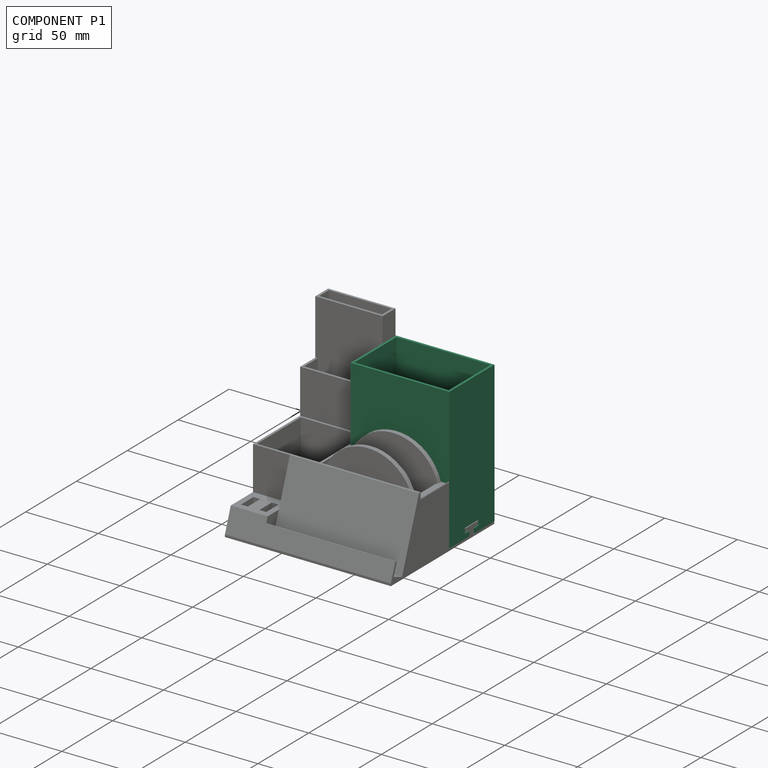
[diagram: component P1 — assembled]
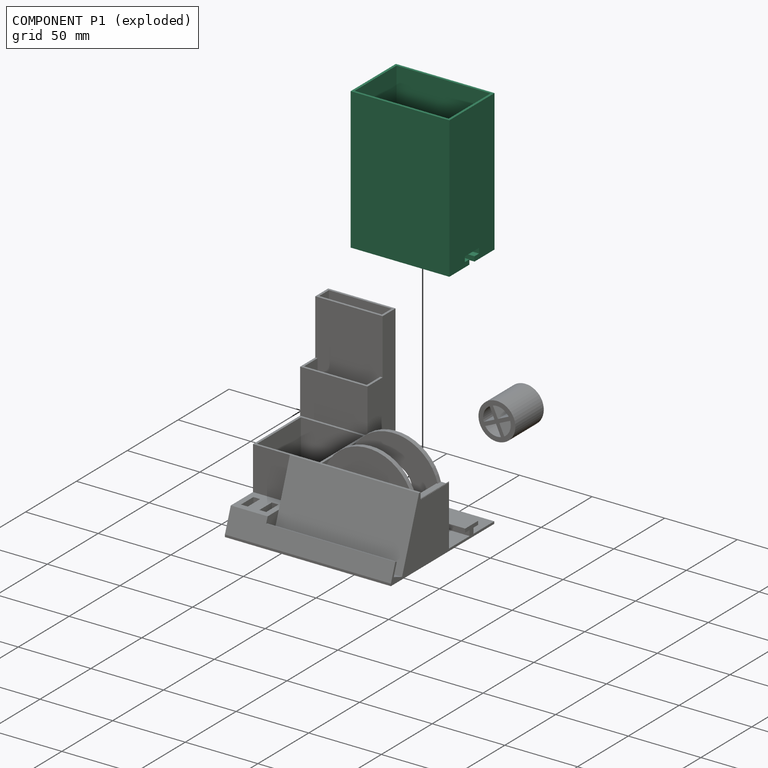
[diagram: component P1 — exploded]
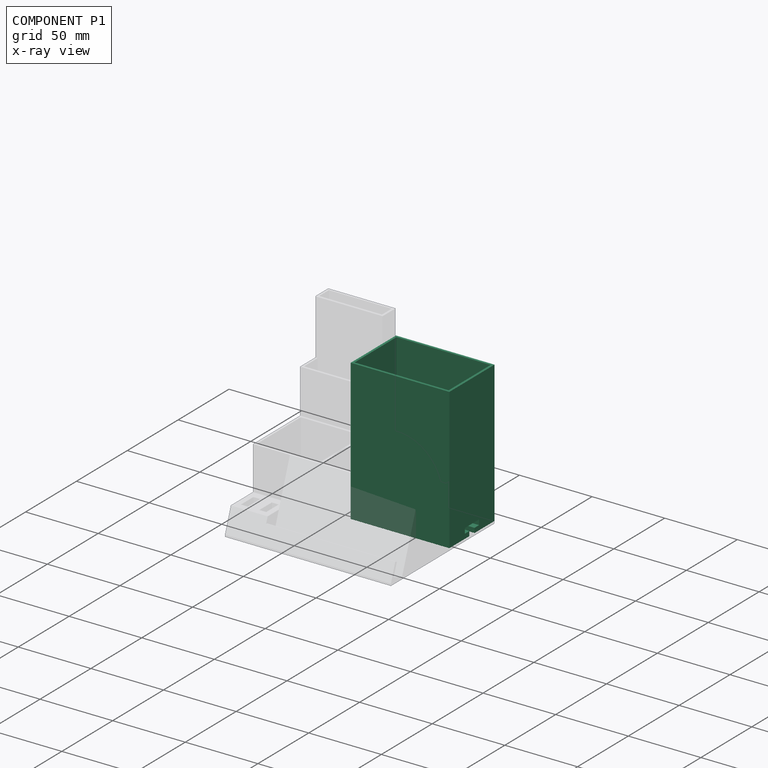
[diagram: component P1 — x-ray view]
COMPONENT P1 — recipe-attached (CADFS 00814328, mesh-verified: the recipe's output STEP matches this component's geometry to below the mesh-comparison resolution (tessellation chordal tolerance ~0.19 mm)).
Held by: PLANAR mate "Planar 1" to P0.
Construction recipe (FeatureScript — the CAD program that rebuilds this solid; sketch coordinates are in the units given by the * unit suffixes, e.g. mm):

FeatureScript 1540;
import(path : "onshape/std/geometry.fs", version : "1540.0");
import(path : "onshape/std/common.fs", version : "1540.0");
const mm = millimeter;
const VERTEX = EntityType.VERTEX;
const EDGE = EntityType.EDGE;
const FACE = EntityType.FACE;
const BODY = EntityType.BODY;
function v(x, y){return vector(x, y);}
function OD(order){return orderDisambiguation(order);}
function OSD(set){return originalSetDisambiguation(set);}
function TD(topology){return topologyDisambiguation(topology);}
function TDD(query){return trueDependencyDisambiguation(query);}
function sQuery(a, b, c) {return sketchEntityQuery(a, b, c);}

annotation { "Feature Type Name" : "Feature", "Feature Type Description" : "" }
export const myFeature = defineFeature(function(context is Context, id is Id, definition is map)
    precondition{}
    {
        {
            var Q0;
            Q0=qCreatedBy(makeId("Top.planeOp"),FACE);
            var sketch = newSketch(context, id + "F0", { "sketchPlane" : qUnion([Q0])});
            skLineSegment(sketch, "E0.bottom", {"start": v(-33.97, 22.23) * mm, "end": v(33.97, 22.23) * mm});
            skLineSegment(sketch, "E0.top", {"start": v(-33.97, -22.23) * mm, "end": v(33.97, -22.23) * mm});
            skLineSegment(sketch, "E0.left", {"start": v(-33.97, 22.23) * mm, "end": v(-33.97, -22.23) * mm});
            skLineSegment(sketch, "E0.right", {"start": v(33.97, 22.23) * mm, "end": v(33.97, -22.23) * mm});
            skLineSegment(sketch, "E1", {"start": v(-33.97, 22.23) * mm, "end": v(33.97, -22.23) * mm, "construction": true});
            skSolve(sketch);
        }
        {
            var Q0;
            Q0 = qSketchRegion(id + "F0", true);
            extrude(context, id + "F1", {"entities" : qUnion([Q0]), "depth" : 1.59 * mm, "offsetDistance" : 25.4 * mm});
        }
        {
            var Q0;
            Q0=makeQuery(id+"F1.opExtrude","CAP_FACE",FACE,{"disambiguationData":[OSD([sQuery(id+"F0.wireOp",EDGE,"E0.bottom"),sQuery(id+"F0.wireOp",EDGE,"E0.top"),sQuery(id+"F0.wireOp",EDGE,"E0.left"),sQuery(id+"F0.wireOp",EDGE,"E0.right")])],"isStart":false});
            var sketch = newSketch(context, id + "F2", { "sketchPlane" : qUnion([Q0])});
            skLineSegment(sketch, "E2.bottom", {"start": v(-33.97, 22.23) * mm, "end": v(33.97, 22.23) * mm});
            skLineSegment(sketch, "E2.top", {"start": v(-33.97, -22.23) * mm, "end": v(33.97, -22.23) * mm});
            skLineSegment(sketch, "E2.left", {"start": v(-33.97, 22.23) * mm, "end": v(-33.97, -22.23) * mm});
            skLineSegment(sketch, "E2.right", {"start": v(33.97, 22.23) * mm, "end": v(33.97, -22.23) * mm});
            skLineSegment(sketch, "E3.0", {"start": v(-32.39, 20.64) * mm, "end": v(32.39, 20.64) * mm});
            skLineSegment(sketch, "E3.1", {"start": v(-32.39, 20.64) * mm, "end": v(-32.39, -20.64) * mm});
            skLineSegment(sketch, "E3.2", {"start": v(-32.39, -20.64) * mm, "end": v(32.39, -20.64) * mm});
            skLineSegment(sketch, "E3.3", {"start": v(32.39, 20.64) * mm, "end": v(32.39, -20.64) * mm});
            skSolve(sketch);
        }
        {
            var Q0;
            Q0 = qSketchRegion(id + "F2", true);
            extrude(context, id + "F3", {"entities" : qUnion([Q0]), "operationType" : NewBodyOperationType.ADD, "depth" : 88.9 * mm, "offsetDistance" : 25.4 * mm});
        }
        {
            var Q0;
            Q0=makeQuery(id+"F1.opExtrude","CAP_FACE",FACE,{"disambiguationData":[OSD([sQuery(id+"F0.wireOp",EDGE,"E0.bottom"),sQuery(id+"F0.wireOp",EDGE,"E0.top"),sQuery(id+"F0.wireOp",EDGE,"E0.left"),sQuery(id+"F0.wireOp",EDGE,"E0.right")])],"isStart":true});
            var sketch = newSketch(context, id + "F4", { "sketchPlane" : qUnion([Q0])});
            skLineSegment(sketch, "E4.bottom", {"start": v(-33.97, 22.23) * mm, "end": v(33.97, 22.23) * mm});
            skLineSegment(sketch, "E4.top", {"start": v(-33.97, 6.98) * mm, "end": v(33.97, 6.99) * mm});
            skLineSegment(sketch, "E4.left", {"start": v(-33.97, 22.23) * mm, "end": v(-33.97, 6.98) * mm});
            skLineSegment(sketch, "E4.right", {"start": v(33.97, 22.23) * mm, "end": v(33.97, 6.99) * mm});
            skLineSegment(sketch, "E5.bottom", {"start": v(33.97, -22.23) * mm, "end": v(-33.97, -22.23) * mm});
            skLineSegment(sketch, "E5.top", {"start": v(33.97, -6.98) * mm, "end": v(-33.97, -6.99) * mm});
            skLineSegment(sketch, "E5.left", {"start": v(33.97, -22.23) * mm, "end": v(33.97, -6.98) * mm});
            skLineSegment(sketch, "E5.right", {"start": v(-33.97, -22.23) * mm, "end": v(-33.97, -6.99) * mm});
            skSolve(sketch);
        }
        {
            var Q0;
            Q0 = qSketchRegion(id + "F4", true);
            extrude(context, id + "F5", {"entities" : qUnion([Q0]), "operationType" : NewBodyOperationType.ADD, "depth" : 6.86 * mm, "offsetDistance" : 25.4 * mm});
        }
        {
            var Q0;
            Q0=makeQuery(id+"F5.opExtrude","CAP_FACE",FACE,{"disambiguationData":[OSD([sQuery(id+"F4.wireOp",EDGE,"E5.bottom"),sQuery(id+"F4.wireOp",EDGE,"E5.top"),sQuery(id+"F4.wireOp",EDGE,"E5.left"),sQuery(id+"F4.wireOp",EDGE,"E5.right")])],"isStart":false});
            var sketch = newSketch(context, id + "F6", { "sketchPlane" : qUnion([Q0])});
            skLineSegment(sketch, "E6.bottom", {"start": v(-33.97, 6.99) * mm, "end": v(33.97, 6.99) * mm});
            skLineSegment(sketch, "E6.top", {"start": v(-33.97, 2.54) * mm, "end": v(33.97, 2.54) * mm});
            skLineSegment(sketch, "E6.left", {"start": v(-33.97, 6.99) * mm, "end": v(-33.97, 2.54) * mm});
            skLineSegment(sketch, "E6.right", {"start": v(33.97, 6.99) * mm, "end": v(33.97, 2.54) * mm});
            skLineSegment(sketch, "E7.bottom", {"start": v(-33.97, -6.99) * mm, "end": v(33.97, -6.99) * mm});
            skLineSegment(sketch, "E7.top", {"start": v(-33.97, -2.54) * mm, "end": v(33.97, -2.54) * mm});
            skLineSegment(sketch, "E7.left", {"start": v(-33.97, -6.99) * mm, "end": v(-33.97, -2.54) * mm});
            skLineSegment(sketch, "E7.right", {"start": v(33.97, -6.99) * mm, "end": v(33.97, -2.54) * mm});
            skSolve(sketch);
        }
        {
            var Q0;
            Q0 = qSketchRegion(id + "F6", true);
            extrude(context, id + "F7", {"entities" : qUnion([Q0]), "operationType" : NewBodyOperationType.ADD, "oppositeDirection" : true, "depth" : 3.3 * mm, "offsetDistance" : 25.4 * mm});
        }
    });
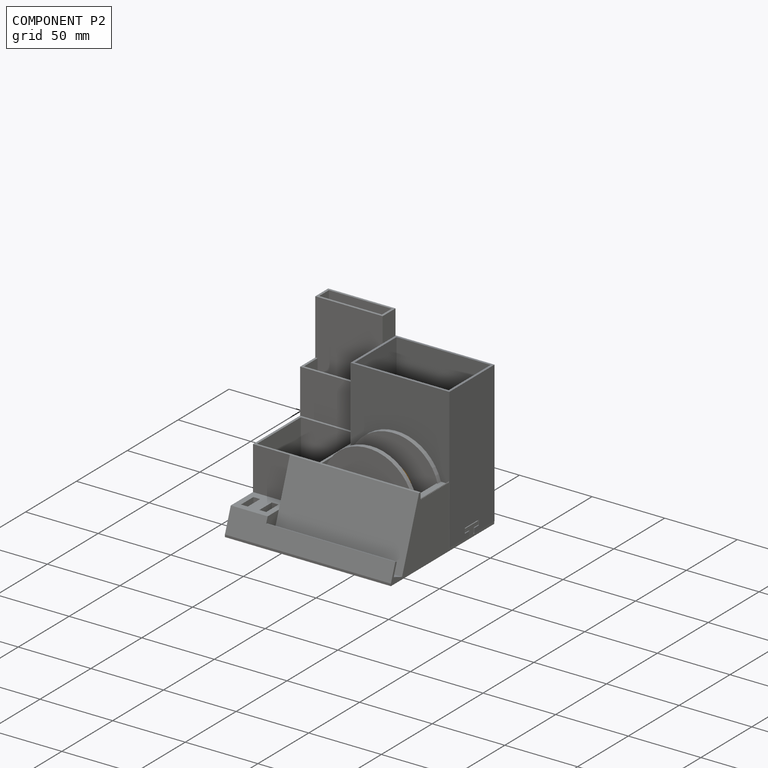
[diagram: component P2 — assembled]
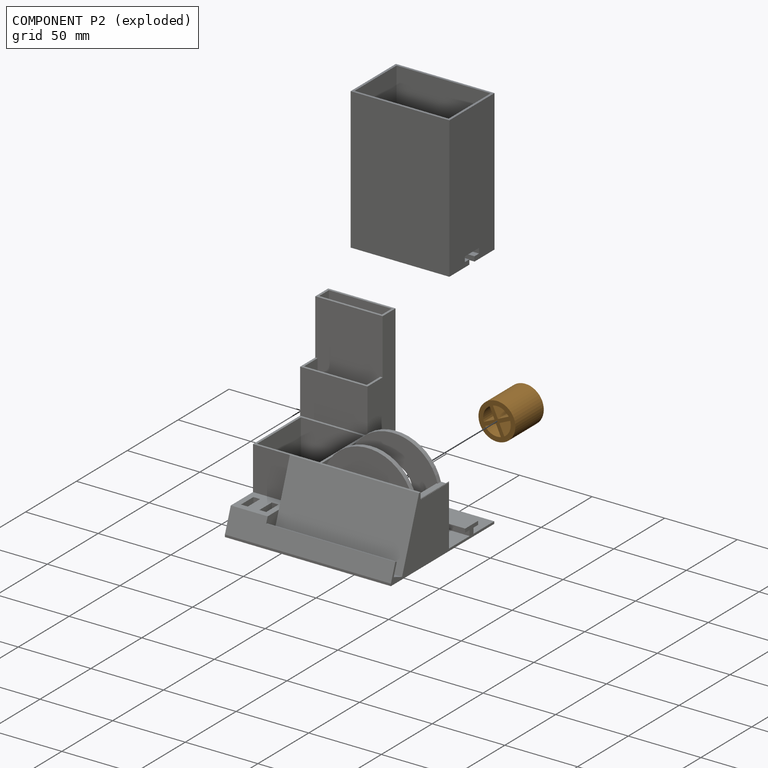
[diagram: component P2 — exploded]
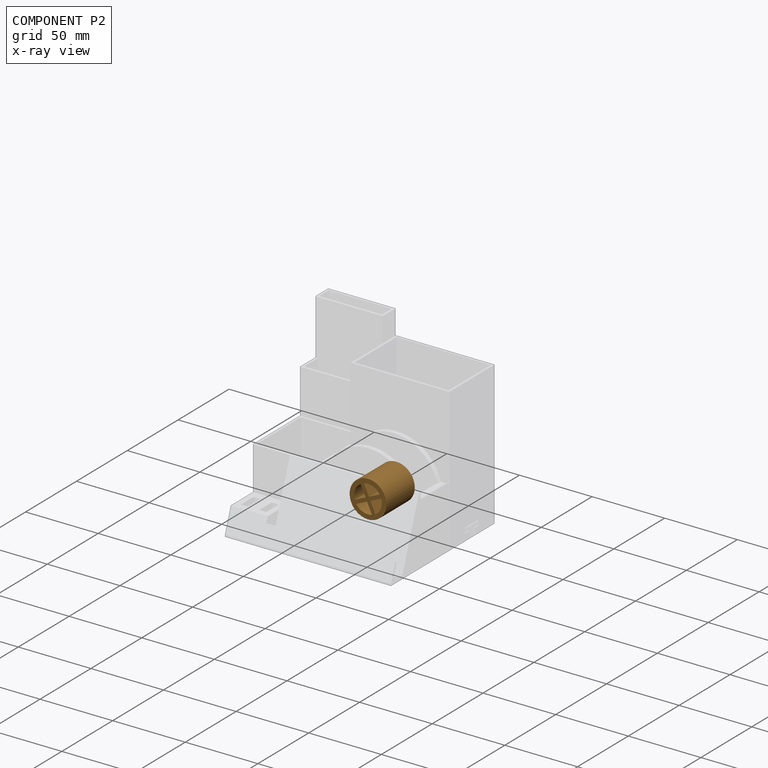
[diagram: component P2 — x-ray view]
COMPONENT P2 — geometry summary (no construction recipe available for this part):
  bounding box: 27.9 x 25.4 x 25.4 mm
  B-rep topology: 1 solid, 15 faces, 78 edges
  volume: 8709 mm^3 (48% of its bounding box)
  symmetry: 2-fold rotationally symmetric about the x axis; 4-fold rotationally symmetric about the y axis; 2-fold rotationally symmetric about the z axis; mirror-symmetric across its x mid-plane, y mid-plane, z mid-plane
Held by: CYLINDRICAL mate "Cylindrical 1" to P0.
PROVENANCE & LICENSES
Assembly (occurrences, transforms, mates, per-part STEP geometry): AutoMate dataset, Zenodo record 7776208, CC0.
Construction recipes: CADFS (HuggingFace VladPyatov/CADFS, CC-BY-4.0, layered over the ABC dataset), FeatureScript reconstruction programs keyed by ABC model id.
Join: ABC meta listings map ABC model id -> Onshape documentId; within a shared document, parts are matched by geometric signature (bounding-box dims + volume at 0.1% relative tolerance, exact B-rep face/solid counts).
Verification: 2 of this assembly's 3 components carry a recipe attachment, and every attachment is mesh-verified: the CADFS STEP and the AutoMate member STEP were compared as meshes in their shared local frame (symmetric sampled-point-to-mesh distance); worst across the 2 attachments: below the mesh-comparison resolution (tessellation chordal tolerance ~0.288 mm) on a 192 mm part.
Renders: orthographic iso camera (az 35 / el 25); the floor grid conveys scale (grid pitch printed in each image; no ruler). In the exploded view each component is displaced by its stored offset vector: the offsets alone carry the explosion direction (mate normal/axis signs are not orientation cues and do not encode it), and separation distances are assigned per mate-chain, not proportionally to assembly-order depth.
